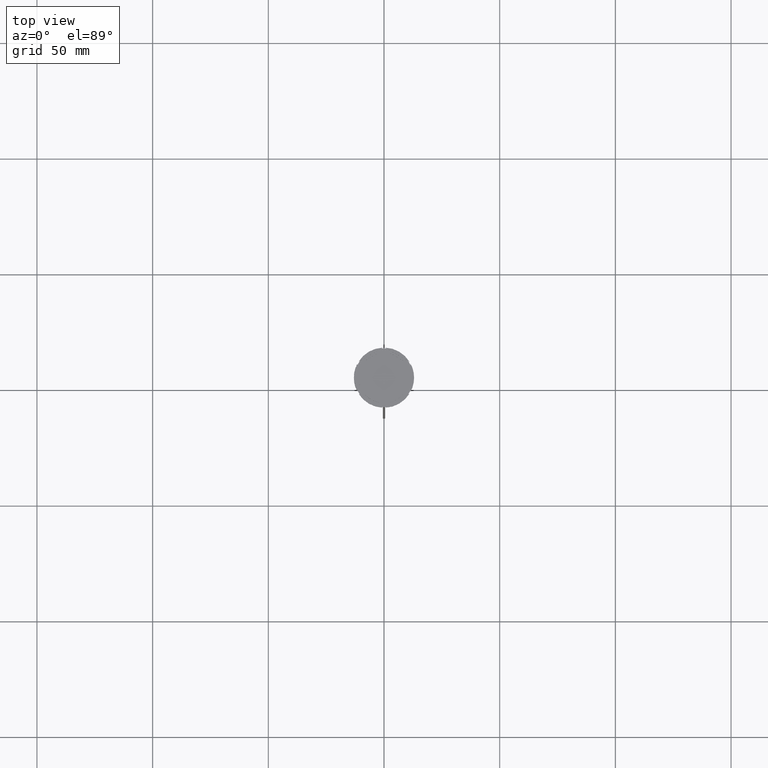
[diagram: clean part render]
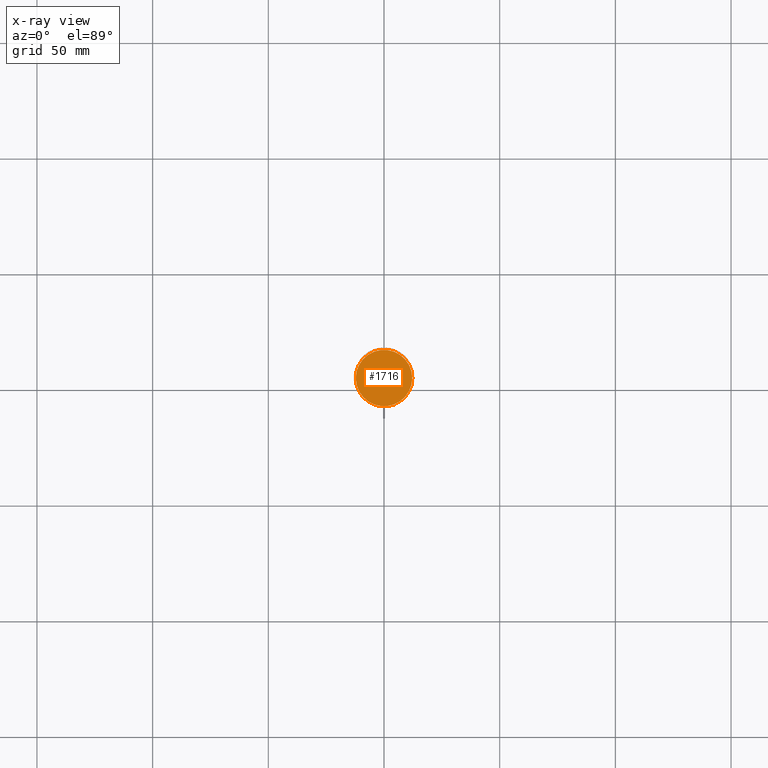
[diagram: x-ray — body ghosted, one internal face saturated and labeled with its STEP entity id]
A machine part, top view, then the same camera in x-ray: the body is ghosted and one INTERNAL B-rep face — a face not visible from any outside direction — is saturated and labeled: STEP entity #1716.
In plain terms, the highlighted planar face has unit normal (0, 0, -1).
Its self-contained STEP definition (entity closure, byte-faithful):
#128 = CARTESIAN_POINT ( 'NONE',  ( 0.000000000000000000, 0.000000000000000000, -12.00000000000000000 ) ) ;
#240 = AXIS2_PLACEMENT_3D ( 'NONE', #1287, #1897, #651 ) ;
#288 = AXIS2_PLACEMENT_3D ( 'NONE', #498, #2345, #1028 ) ;
#294 = CARTESIAN_POINT ( 'NONE',  ( -12.20000000000000639, 0.000000000000000000, -12.00000000000000000 ) ) ;
#445 = EDGE_CURVE ( 'NONE', #2546, #2640, #1719, .T. ) ;
#498 = CARTESIAN_POINT ( 'NONE',  ( 0.000000000000000000, 0.000000000000000000, -12.00000000000000000 ) ) ;
#651 = DIRECTION ( 'NONE',  ( -1.000000000000000000, 0.000000000000000000, 0.000000000000000000 ) ) ;
#718 = ORIENTED_EDGE ( 'NONE', *, *, #1857, .T. ) ;
#785 = AXIS2_PLACEMENT_3D ( 'NONE', #128, #1596, #1409 ) ;
#1028 = DIRECTION ( 'NONE',  ( -1.000000000000000000, 0.000000000000000000, 0.000000000000000000 ) ) ;
#1287 = CARTESIAN_POINT ( 'NONE',  ( 0.000000000000000000, 0.000000000000000000, -12.00000000000000000 ) ) ;
#1301 = CARTESIAN_POINT ( 'NONE',  ( 12.20000000000000639, 1.512438796946981880E-15, -12.00000000000000000 ) ) ;
#1349 = ORIENTED_EDGE ( 'NONE', *, *, #445, .T. ) ;
#1409 = DIRECTION ( 'NONE',  ( -1.000000000000000000, 0.000000000000000000, -0.000000000000000000 ) ) ;
#1423 = FACE_OUTER_BOUND ( 'NONE', #1571, .T. ) ;
#1571 = EDGE_LOOP ( 'NONE', ( #1349, #718 ) ) ;
#1596 = DIRECTION ( 'NONE',  ( 0.000000000000000000, 0.000000000000000000, -1.000000000000000000 ) ) ;
#1716 = ADVANCED_FACE ( 'NONE', ( #1423 ), #2051, .F. ) ;
#1719 = CIRCLE ( 'NONE', #288, 12.20000000000000639 ) ;
#1857 = EDGE_CURVE ( 'NONE', #2640, #2546, #1992, .T. ) ;
#1897 = DIRECTION ( 'NONE',  ( -0.000000000000000000, -0.000000000000000000, 1.000000000000000000 ) ) ;
#1992 = CIRCLE ( 'NONE', #240, 12.20000000000000639 ) ;
#2051 = PLANE ( 'NONE',  #785 ) ;
#2345 = DIRECTION ( 'NONE',  ( -0.000000000000000000, -0.000000000000000000, 1.000000000000000000 ) ) ;
#2546 = VERTEX_POINT ( 'NONE', #294 ) ;
#2640 = VERTEX_POINT ( 'NONE', #1301 ) ;